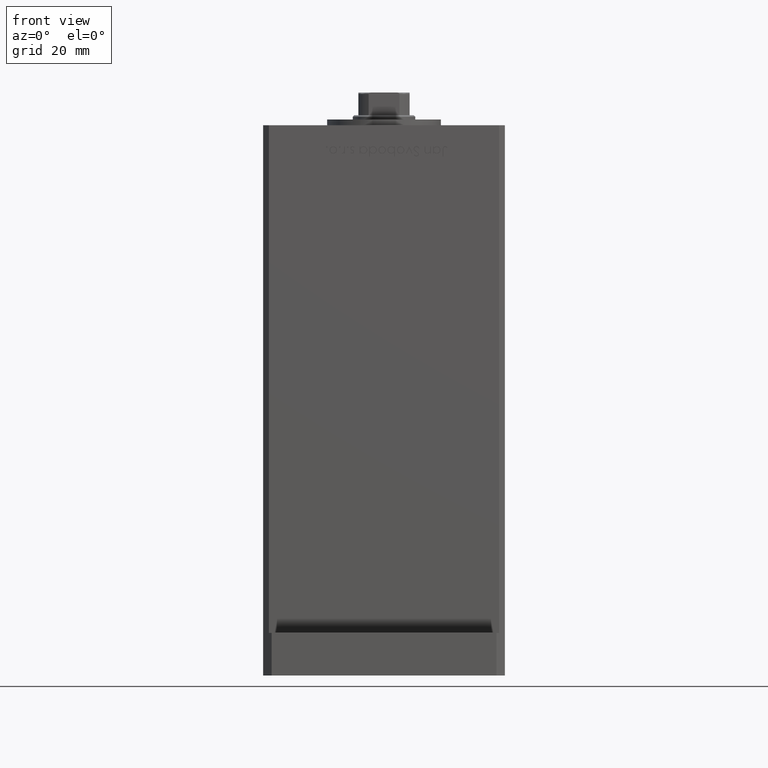
[diagram: clean part render]
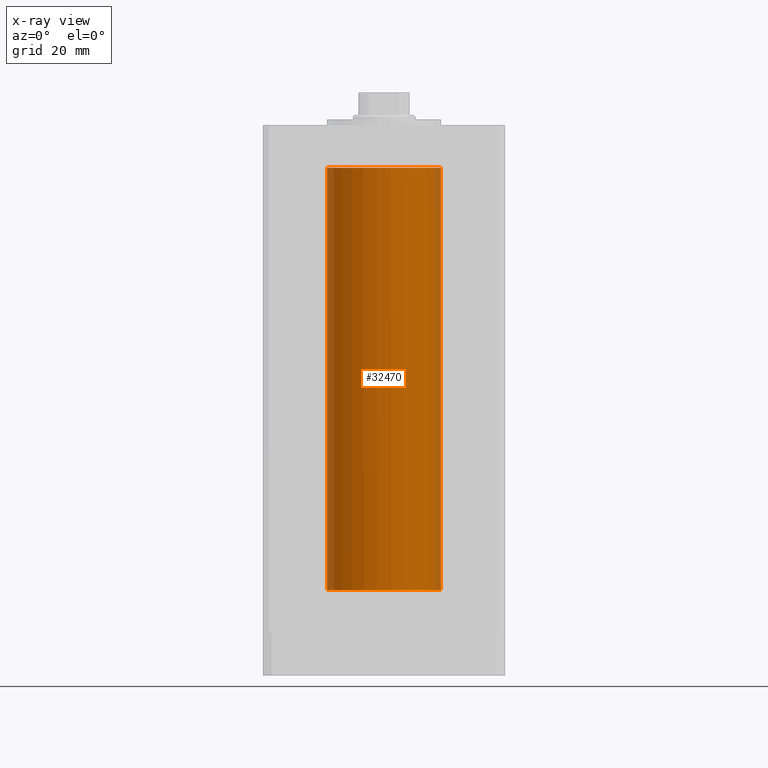
[diagram: x-ray — body ghosted, one internal face saturated and labeled with its STEP entity id]
A machine part, front view, then the same camera in x-ray: the body is ghosted and one INTERNAL B-rep face — a face not visible from any outside direction — is saturated and labeled: STEP entity #32470.
In plain terms, the highlighted cylindrical surface (partial cylindrical patch) has radius 20 mm, axis along (-0, -0, -1).
Its self-contained STEP definition (entity closure, byte-faithful):
#2265 = AXIS2_PLACEMENT_3D ( 'NONE', #23519, #35937, #15436 ) ;
#3191 = CARTESIAN_POINT ( 'NONE',  ( -20.00000000000000000, 0.000000000000000000, 148.5000000000000000 ) ) ;
#3196 = AXIS2_PLACEMENT_3D ( 'NONE', #49719, #12243, #8455 ) ;
#3587 = EDGE_CURVE ( 'NONE', #40021, #41755, #45360, .T. ) ;
#5275 = DIRECTION ( 'NONE',  ( -0.000000000000000000, 0.000000000000000000, 1.000000000000000000 ) ) ;
#8455 = DIRECTION ( 'NONE',  ( 1.000000000000000000, 0.000000000000000000, 0.000000000000000000 ) ) ;
#9485 = VERTEX_POINT ( 'NONE', #28063 ) ;
#10658 = CARTESIAN_POINT ( 'NONE',  ( 20.00000000000000000, 2.449293598294706513E-15, 148.5000000000000000 ) ) ;
#11131 = CARTESIAN_POINT ( 'NONE',  ( 20.00000000000000000, 2.449293598294706513E-15, 148.5000000000000000 ) ) ;
#11371 = VERTEX_POINT ( 'NONE', #30540 ) ;
#12243 = DIRECTION ( 'NONE',  ( -0.000000000000000000, 0.000000000000000000, 1.000000000000000000 ) ) ;
#12326 = EDGE_CURVE ( 'NONE', #40021, #11371, #51466, .T. ) ;
#12770 = ORIENTED_EDGE ( 'NONE', *, *, #25870, .T. ) ;
#15167 = DIRECTION ( 'NONE',  ( -0.000000000000000000, -0.000000000000000000, -1.000000000000000000 ) ) ;
#15436 = DIRECTION ( 'NONE',  ( -1.000000000000000000, 0.000000000000000000, 0.000000000000000000 ) ) ;
#18444 = ORIENTED_EDGE ( 'NONE', *, *, #3587, .T. ) ;
#19202 = FACE_OUTER_BOUND ( 'NONE', #24374, .T. ) ;
#20649 = EDGE_CURVE ( 'NONE', #11371, #9485, #29369, .T. ) ;
#21749 = VECTOR ( 'NONE', #15167, 1000.000000000000000 ) ;
#23427 = ORIENTED_EDGE ( 'NONE', *, *, #12326, .F. ) ;
#23519 = CARTESIAN_POINT ( 'NONE',  ( 0.000000000000000000, 0.000000000000000000, 148.5000000000000000 ) ) ;
#24374 = EDGE_LOOP ( 'NONE', ( #18444, #12770, #41831, #23427 ) ) ;
#25870 = EDGE_CURVE ( 'NONE', #41755, #9485, #31074, .T. ) ;
#28063 = CARTESIAN_POINT ( 'NONE',  ( 20.00000000000000000, 2.449293598294706513E-15, 0.000000000000000000 ) ) ;
#29369 = CIRCLE ( 'NONE', #51752, 20.00000000000000000 ) ;
#30540 = CARTESIAN_POINT ( 'NONE',  ( -20.00000000000000000, 0.000000000000000000, 0.000000000000000000 ) ) ;
#31074 = LINE ( 'NONE', #11131, #21749 ) ;
#32470 = ADVANCED_FACE ( 'NONE', ( #19202 ), #48069, .F. ) ;
#35937 = DIRECTION ( 'NONE',  ( -0.000000000000000000, -0.000000000000000000, -1.000000000000000000 ) ) ;
#39317 = DIRECTION ( 'NONE',  ( -0.000000000000000000, -0.000000000000000000, -1.000000000000000000 ) ) ;
#40021 = VERTEX_POINT ( 'NONE', #46851 ) ;
#41755 = VERTEX_POINT ( 'NONE', #10658 ) ;
#41831 = ORIENTED_EDGE ( 'NONE', *, *, #20649, .F. ) ;
#41912 = CARTESIAN_POINT ( 'NONE',  ( 0.000000000000000000, 0.000000000000000000, 0.000000000000000000 ) ) ;
#42117 = VECTOR ( 'NONE', #39317, 1000.000000000000000 ) ;
#45360 = CIRCLE ( 'NONE', #3196, 20.00000000000000000 ) ;
#46851 = CARTESIAN_POINT ( 'NONE',  ( -20.00000000000000000, 0.000000000000000000, 148.5000000000000000 ) ) ;
#48069 = CYLINDRICAL_SURFACE ( 'NONE', #2265, 20.00000000000000000 ) ;
#49719 = CARTESIAN_POINT ( 'NONE',  ( 0.000000000000000000, 0.000000000000000000, 148.5000000000000000 ) ) ;
#51466 = LINE ( 'NONE', #3191, #42117 ) ;
#51752 = AXIS2_PLACEMENT_3D ( 'NONE', #41912, #5275, #53291 ) ;
#53291 = DIRECTION ( 'NONE',  ( 1.000000000000000000, 0.000000000000000000, 0.000000000000000000 ) ) ;